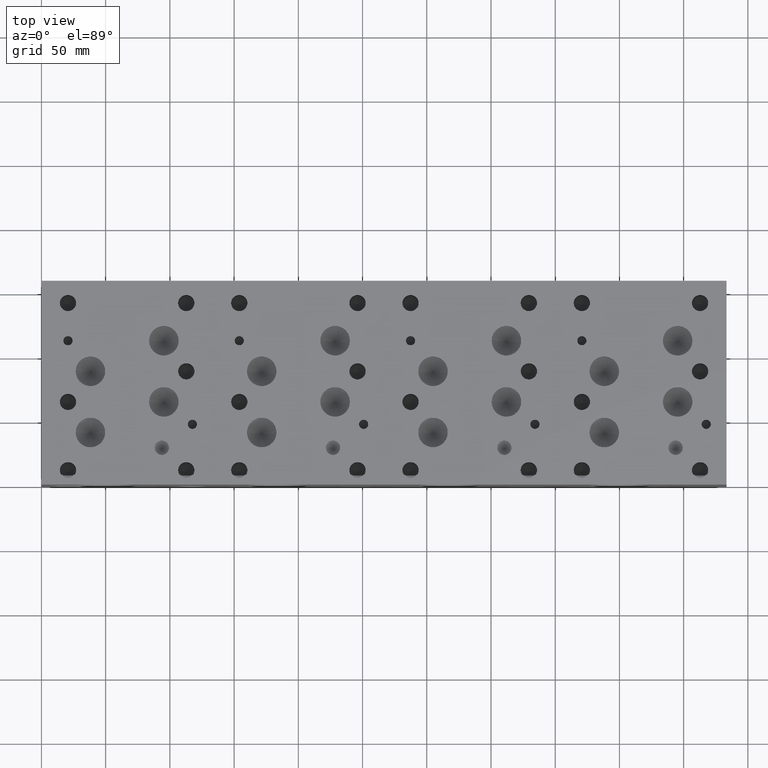
[diagram: clean part render]
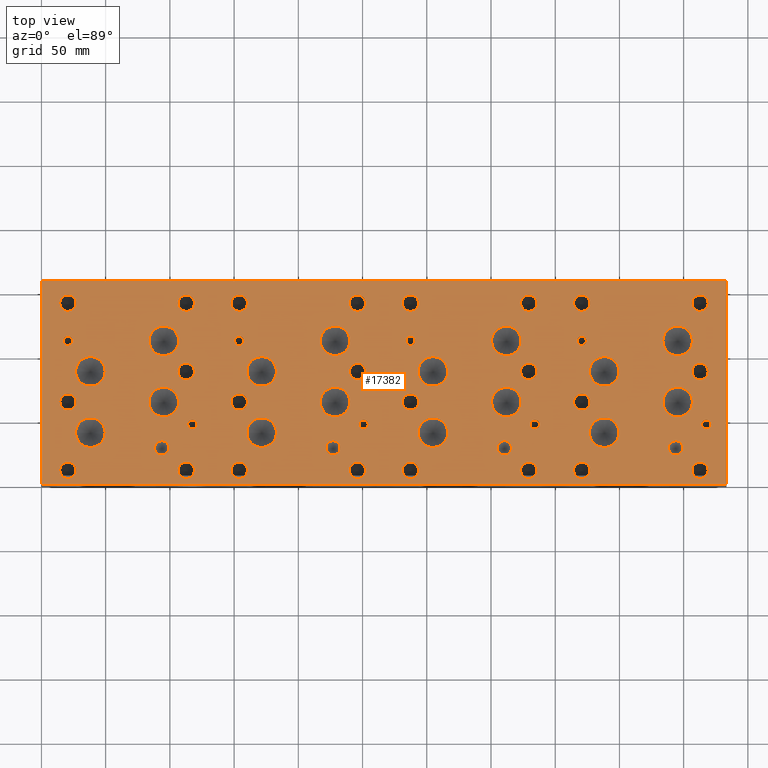
[diagram: same view with one face highlighted and labeled with its STEP entity id]
A machine part, top view. The second image highlights one B-rep face of the part: STEP entity #17382.
In plain terms, the highlighted planar face has unit normal (0, 0, 1).
Its self-contained STEP definition (entity closure, byte-faithful):
#541=CIRCLE('',#17849,5.5626);
#542=CIRCLE('',#17850,5.5626);
#545=CIRCLE('',#17855,5.5626);
#546=CIRCLE('',#17856,5.5626);
#549=CIRCLE('',#17861,5.5626);
#550=CIRCLE('',#17862,5.5626);
#810=CIRCLE('',#18307,5.55625);
#811=CIRCLE('',#18308,5.55625);
#814=CIRCLE('',#18313,11.50874);
#815=CIRCLE('',#18314,11.50874);
#818=CIRCLE('',#18319,11.5062);
#819=CIRCLE('',#18320,11.5062);
#822=CIRCLE('',#18325,11.5062);
#823=CIRCLE('',#18326,11.5062);
#826=CIRCLE('',#18331,11.5062);
#827=CIRCLE('',#18332,11.5062);
#830=CIRCLE('',#18337,11.5062);
#831=CIRCLE('',#18338,11.5062);
#834=CIRCLE('',#18343,11.5062);
#835=CIRCLE('',#18344,11.5062);
#838=CIRCLE('',#18349,11.5062);
#839=CIRCLE('',#18350,11.5062);
#842=CIRCLE('',#18355,11.5062);
#843=CIRCLE('',#18356,11.5062);
#846=CIRCLE('',#18361,11.5062);
#847=CIRCLE('',#18362,11.5062);
#850=CIRCLE('',#18367,11.5062);
#851=CIRCLE('',#18368,11.5062);
#854=CIRCLE('',#18373,11.5062);
#855=CIRCLE('',#18374,11.5062);
#858=CIRCLE('',#18379,11.5062);
#859=CIRCLE('',#18380,11.5062);
#862=CIRCLE('',#18385,11.5062);
#863=CIRCLE('',#18386,11.5062);
#866=CIRCLE('',#18391,11.5062);
#867=CIRCLE('',#18392,11.5062);
#870=CIRCLE('',#18397,11.5062);
#871=CIRCLE('',#18398,11.5062);
#874=CIRCLE('',#18403,11.5062);
#875=CIRCLE('',#18404,11.5062);
#878=CIRCLE('',#18409,3.5687);
#879=CIRCLE('',#18410,3.5687);
#882=CIRCLE('',#18415,3.5687);
#883=CIRCLE('',#18416,3.5687);
#886=CIRCLE('',#18421,3.5687);
#887=CIRCLE('',#18422,3.5687);
#890=CIRCLE('',#18427,3.5687);
#891=CIRCLE('',#18428,3.5687);
#894=CIRCLE('',#18433,3.5687);
#895=CIRCLE('',#18434,3.5687);
#898=CIRCLE('',#18439,3.5687);
#899=CIRCLE('',#18440,3.5687);
#902=CIRCLE('',#18445,3.5687);
#903=CIRCLE('',#18446,3.5687);
#906=CIRCLE('',#18451,3.5687);
#907=CIRCLE('',#18452,3.5687);
#913=CIRCLE('',#18461,6.35);
#914=CIRCLE('',#18462,6.35);
#920=CIRCLE('',#18472,6.35);
#921=CIRCLE('',#18473,6.35);
#927=CIRCLE('',#18483,6.35);
#928=CIRCLE('',#18484,6.35);
#934=CIRCLE('',#18494,6.35);
#935=CIRCLE('',#18495,6.35);
#941=CIRCLE('',#18505,6.35);
#942=CIRCLE('',#18506,6.35);
#948=CIRCLE('',#18516,6.35);
#949=CIRCLE('',#18517,6.35);
#955=CIRCLE('',#18527,6.35);
#956=CIRCLE('',#18528,6.35);
#962=CIRCLE('',#18538,6.35);
#963=CIRCLE('',#18539,6.35);
#969=CIRCLE('',#18549,6.35);
#970=CIRCLE('',#18550,6.35);
#976=CIRCLE('',#18560,6.35);
#977=CIRCLE('',#18561,6.35);
#983=CIRCLE('',#18571,6.35);
#984=CIRCLE('',#18572,6.35);
#990=CIRCLE('',#18582,6.35);
#991=CIRCLE('',#18583,6.35);
#997=CIRCLE('',#18593,6.35);
#998=CIRCLE('',#18594,6.35);
#1004=CIRCLE('',#18604,6.35);
#1005=CIRCLE('',#18605,6.35);
#1011=CIRCLE('',#18615,6.35);
#1012=CIRCLE('',#18616,6.35);
#1018=CIRCLE('',#18626,6.35);
#1019=CIRCLE('',#18627,6.35);
#1025=CIRCLE('',#18637,6.35);
#1026=CIRCLE('',#18638,6.35);
#1032=CIRCLE('',#18648,6.35);
#1033=CIRCLE('',#18649,6.35);
#1039=CIRCLE('',#18659,6.35);
#1040=CIRCLE('',#18660,6.35);
#1046=CIRCLE('',#18670,6.35);
#1047=CIRCLE('',#18671,6.35);
#1053=CIRCLE('',#18681,6.35);
#1054=CIRCLE('',#18682,6.35);
#1060=CIRCLE('',#18692,6.35);
#1061=CIRCLE('',#18693,6.35);
#1067=CIRCLE('',#18703,6.35);
#1068=CIRCLE('',#18704,6.35);
#1074=CIRCLE('',#18714,6.35);
#1075=CIRCLE('',#18715,6.35);
#1572=FACE_BOUND('',#3589,.T.);
#1573=FACE_BOUND('',#3590,.T.);
#1574=FACE_BOUND('',#3591,.T.);
#1575=FACE_BOUND('',#3592,.T.);
#1576=FACE_BOUND('',#3593,.T.);
#1577=FACE_BOUND('',#3594,.T.);
#1578=FACE_BOUND('',#3595,.T.);
#1579=FACE_BOUND('',#3596,.T.);
#1580=FACE_BOUND('',#3597,.T.);
#1581=FACE_BOUND('',#3598,.T.);
#1582=FACE_BOUND('',#3599,.T.);
#1583=FACE_BOUND('',#3600,.T.);
#1584=FACE_BOUND('',#3601,.T.);
#1585=FACE_BOUND('',#3602,.T.);
#1586=FACE_BOUND('',#3603,.T.);
#1587=FACE_BOUND('',#3604,.T.);
#1588=FACE_BOUND('',#3605,.T.);
#1589=FACE_BOUND('',#3606,.T.);
#1590=FACE_BOUND('',#3607,.T.);
#1591=FACE_BOUND('',#3608,.T.);
#1592=FACE_BOUND('',#3609,.T.);
#1593=FACE_BOUND('',#3610,.T.);
#1594=FACE_BOUND('',#3611,.T.);
#1595=FACE_BOUND('',#3612,.T.);
#1596=FACE_BOUND('',#3613,.T.);
#1597=FACE_BOUND('',#3614,.T.);
#1598=FACE_BOUND('',#3615,.T.);
#1599=FACE_BOUND('',#3616,.T.);
#1600=FACE_BOUND('',#3617,.T.);
#1601=FACE_BOUND('',#3618,.T.);
#1602=FACE_BOUND('',#3619,.T.);
#1603=FACE_BOUND('',#3620,.T.);
#1604=FACE_BOUND('',#3621,.T.);
#1605=FACE_BOUND('',#3622,.T.);
#1606=FACE_BOUND('',#3623,.T.);
#1607=FACE_BOUND('',#3624,.T.);
#1608=FACE_BOUND('',#3625,.T.);
#1609=FACE_BOUND('',#3626,.T.);
#1610=FACE_BOUND('',#3627,.T.);
#1611=FACE_BOUND('',#3628,.T.);
#1612=FACE_BOUND('',#3629,.T.);
#1613=FACE_BOUND('',#3630,.T.);
#1614=FACE_BOUND('',#3631,.T.);
#1615=FACE_BOUND('',#3632,.T.);
#1616=FACE_BOUND('',#3633,.T.);
#1617=FACE_BOUND('',#3634,.T.);
#1618=FACE_BOUND('',#3635,.T.);
#1619=FACE_BOUND('',#3636,.T.);
#1620=FACE_BOUND('',#3637,.T.);
#1621=FACE_BOUND('',#3638,.T.);
#1622=FACE_BOUND('',#3639,.T.);
#1623=FACE_BOUND('',#3640,.T.);
#2539=FACE_OUTER_BOUND('',#3588,.T.);
#3588=EDGE_LOOP('',(#15369,#15370,#15371,#15372));
#3589=EDGE_LOOP('',(#15373,#15374));
#3590=EDGE_LOOP('',(#15375,#15376));
#3591=EDGE_LOOP('',(#15377,#15378));
#3592=EDGE_LOOP('',(#15379,#15380));
#3593=EDGE_LOOP('',(#15381,#15382));
#3594=EDGE_LOOP('',(#15383,#15384));
#3595=EDGE_LOOP('',(#15385,#15386));
#3596=EDGE_LOOP('',(#15387,#15388));
#3597=EDGE_LOOP('',(#15389,#15390));
#3598=EDGE_LOOP('',(#15391,#15392));
#3599=EDGE_LOOP('',(#15393,#15394));
#3600=EDGE_LOOP('',(#15395,#15396));
#3601=EDGE_LOOP('',(#15397,#15398));
#3602=EDGE_LOOP('',(#15399,#15400));
#3603=EDGE_LOOP('',(#15401,#15402));
#3604=EDGE_LOOP('',(#15403,#15404));
#3605=EDGE_LOOP('',(#15405,#15406));
#3606=EDGE_LOOP('',(#15407,#15408));
#3607=EDGE_LOOP('',(#15409,#15410));
#3608=EDGE_LOOP('',(#15411,#15412));
#3609=EDGE_LOOP('',(#15413,#15414));
#3610=EDGE_LOOP('',(#15415,#15416));
#3611=EDGE_LOOP('',(#15417,#15418));
#3612=EDGE_LOOP('',(#15419,#15420));
#3613=EDGE_LOOP('',(#15421,#15422));
#3614=EDGE_LOOP('',(#15423,#15424));
#3615=EDGE_LOOP('',(#15425,#15426));
#3616=EDGE_LOOP('',(#15427,#15428));
#3617=EDGE_LOOP('',(#15429,#15430));
#3618=EDGE_LOOP('',(#15431,#15432));
#3619=EDGE_LOOP('',(#15433,#15434));
#3620=EDGE_LOOP('',(#15435,#15436));
#3621=EDGE_LOOP('',(#15437,#15438));
#3622=EDGE_LOOP('',(#15439,#15440));
#3623=EDGE_LOOP('',(#15441,#15442));
#3624=EDGE_LOOP('',(#15443,#15444));
#3625=EDGE_LOOP('',(#15445,#15446));
#3626=EDGE_LOOP('',(#15447,#15448));
#3627=EDGE_LOOP('',(#15449,#15450));
#3628=EDGE_LOOP('',(#15451,#15452));
#3629=EDGE_LOOP('',(#15453,#15454));
#3630=EDGE_LOOP('',(#15455,#15456));
#3631=EDGE_LOOP('',(#15457,#15458));
#3632=EDGE_LOOP('',(#15459,#15460));
#3633=EDGE_LOOP('',(#15461,#15462));
#3634=EDGE_LOOP('',(#15463,#15464));
#3635=EDGE_LOOP('',(#15465,#15466));
#3636=EDGE_LOOP('',(#15467,#15468));
#3637=EDGE_LOOP('',(#15469,#15470));
#3638=EDGE_LOOP('',(#15471,#15472));
#3639=EDGE_LOOP('',(#15473,#15474));
#3640=EDGE_LOOP('',(#15475,#15476));
#3677=LINE('',#22909,#5136);
#4725=LINE('',#28053,#6184);
#4783=LINE('',#28324,#6242);
#5100=LINE('',#30208,#6559);
#5136=VECTOR('',#18786,10.);
#6184=VECTOR('',#20558,10.);
#6242=VECTOR('',#20670,10.);
#6559=VECTOR('',#22825,10.);
#6584=VERTEX_POINT('',#22906);
#6585=VERTEX_POINT('',#22908);
#7535=VERTEX_POINT('',#28051);
#7593=VERTEX_POINT('',#28323);
#7639=VERTEX_POINT('',#28454);
#7640=VERTEX_POINT('',#28455);
#7644=VERTEX_POINT('',#28467);
#7645=VERTEX_POINT('',#28468);
#7649=VERTEX_POINT('',#28480);
#7650=VERTEX_POINT('',#28481);
#7928=VERTEX_POINT('',#29360);
#7929=VERTEX_POINT('',#29361);
#7933=VERTEX_POINT('',#29373);
#7934=VERTEX_POINT('',#29374);
#7938=VERTEX_POINT('',#29386);
#7939=VERTEX_POINT('',#29387);
#7943=VERTEX_POINT('',#29399);
#7944=VERTEX_POINT('',#29400);
#7948=VERTEX_POINT('',#29412);
#7949=VERTEX_POINT('',#29413);
#7953=VERTEX_POINT('',#29425);
#7954=VERTEX_POINT('',#29426);
#7958=VERTEX_POINT('',#29438);
#7959=VERTEX_POINT('',#29439);
#7963=VERTEX_POINT('',#29451);
#7964=VERTEX_POINT('',#29452);
#7968=VERTEX_POINT('',#29464);
#7969=VERTEX_POINT('',#29465);
#7973=VERTEX_POINT('',#29477);
#7974=VERTEX_POINT('',#29478);
#7978=VERTEX_POINT('',#29490);
#7979=VERTEX_POINT('',#29491);
#7983=VERTEX_POINT('',#29503);
#7984=VERTEX_POINT('',#29504);
#7988=VERTEX_POINT('',#29516);
#7989=VERTEX_POINT('',#29517);
#7993=VERTEX_POINT('',#29529);
#7994=VERTEX_POINT('',#29530);
#7998=VERTEX_POINT('',#29542);
#7999=VERTEX_POINT('',#29543);
#8003=VERTEX_POINT('',#29555);
#8004=VERTEX_POINT('',#29556);
#8008=VERTEX_POINT('',#29568);
#8009=VERTEX_POINT('',#29569);
#8013=VERTEX_POINT('',#29581);
#8014=VERTEX_POINT('',#29582);
#8018=VERTEX_POINT('',#29594);
#8019=VERTEX_POINT('',#29595);
#8023=VERTEX_POINT('',#29607);
#8024=VERTEX_POINT('',#29608);
#8028=VERTEX_POINT('',#29620);
#8029=VERTEX_POINT('',#29621);
#8033=VERTEX_POINT('',#29633);
#8034=VERTEX_POINT('',#29634);
#8038=VERTEX_POINT('',#29646);
#8039=VERTEX_POINT('',#29647);
#8043=VERTEX_POINT('',#29659);
#8044=VERTEX_POINT('',#29660);
#8048=VERTEX_POINT('',#29672);
#8049=VERTEX_POINT('',#29673);
#8056=VERTEX_POINT('',#29692);
#8057=VERTEX_POINT('',#29693);
#8064=VERTEX_POINT('',#29714);
#8065=VERTEX_POINT('',#29715);
#8072=VERTEX_POINT('',#29736);
#8073=VERTEX_POINT('',#29737);
#8080=VERTEX_POINT('',#29758);
#8081=VERTEX_POINT('',#29759);
#8088=VERTEX_POINT('',#29780);
#8089=VERTEX_POINT('',#29781);
#8096=VERTEX_POINT('',#29802);
#8097=VERTEX_POINT('',#29803);
#8104=VERTEX_POINT('',#29824);
#8105=VERTEX_POINT('',#29825);
#8112=VERTEX_POINT('',#29846);
#8113=VERTEX_POINT('',#29847);
#8120=VERTEX_POINT('',#29868);
#8121=VERTEX_POINT('',#29869);
#8128=VERTEX_POINT('',#29890);
#8129=VERTEX_POINT('',#29891);
#8136=VERTEX_POINT('',#29912);
#8137=VERTEX_POINT('',#29913);
#8144=VERTEX_POINT('',#29934);
#8145=VERTEX_POINT('',#29935);
#8152=VERTEX_POINT('',#29956);
#8153=VERTEX_POINT('',#29957);
#8160=VERTEX_POINT('',#29978);
#8161=VERTEX_POINT('',#29979);
#8168=VERTEX_POINT('',#30000);
#8169=VERTEX_POINT('',#30001);
#8176=VERTEX_POINT('',#30022);
#8177=VERTEX_POINT('',#30023);
#8184=VERTEX_POINT('',#30044);
#8185=VERTEX_POINT('',#30045);
#8192=VERTEX_POINT('',#30066);
#8193=VERTEX_POINT('',#30067);
#8200=VERTEX_POINT('',#30088);
#8201=VERTEX_POINT('',#30089);
#8208=VERTEX_POINT('',#30110);
#8209=VERTEX_POINT('',#30111);
#8216=VERTEX_POINT('',#30132);
#8217=VERTEX_POINT('',#30133);
#8224=VERTEX_POINT('',#30154);
#8225=VERTEX_POINT('',#30155);
#8232=VERTEX_POINT('',#30176);
#8233=VERTEX_POINT('',#30177);
#8240=VERTEX_POINT('',#30198);
#8241=VERTEX_POINT('',#30199);
#8277=EDGE_CURVE('',#6585,#6584,#3677,.T.);
#9693=EDGE_CURVE('',#6584,#7535,#4725,.T.);
#9775=EDGE_CURVE('',#7593,#6585,#4783,.T.);
#9838=EDGE_CURVE('',#7639,#7640,#541,.T.);
#9839=EDGE_CURVE('',#7640,#7639,#542,.T.);
#9844=EDGE_CURVE('',#7644,#7645,#545,.T.);
#9845=EDGE_CURVE('',#7645,#7644,#546,.T.);
#9850=EDGE_CURVE('',#7649,#7650,#549,.T.);
#9851=EDGE_CURVE('',#7650,#7649,#550,.T.);
#10266=EDGE_CURVE('',#7928,#7929,#810,.T.);
#10267=EDGE_CURVE('',#7929,#7928,#811,.T.);
#10272=EDGE_CURVE('',#7933,#7934,#814,.T.);
#10273=EDGE_CURVE('',#7934,#7933,#815,.T.);
#10278=EDGE_CURVE('',#7938,#7939,#818,.T.);
#10279=EDGE_CURVE('',#7939,#7938,#819,.T.);
#10284=EDGE_CURVE('',#7943,#7944,#822,.T.);
#10285=EDGE_CURVE('',#7944,#7943,#823,.T.);
#10290=EDGE_CURVE('',#7948,#7949,#826,.T.);
#10291=EDGE_CURVE('',#7949,#7948,#827,.T.);
#10296=EDGE_CURVE('',#7953,#7954,#830,.T.);
#10297=EDGE_CURVE('',#7954,#7953,#831,.T.);
#10302=EDGE_CURVE('',#7958,#7959,#834,.T.);
#10303=EDGE_CURVE('',#7959,#7958,#835,.T.);
#10308=EDGE_CURVE('',#7963,#7964,#838,.T.);
#10309=EDGE_CURVE('',#7964,#7963,#839,.T.);
#10314=EDGE_CURVE('',#7968,#7969,#842,.T.);
#10315=EDGE_CURVE('',#7969,#7968,#843,.T.);
#10320=EDGE_CURVE('',#7973,#7974,#846,.T.);
#10321=EDGE_CURVE('',#7974,#7973,#847,.T.);
#10326=EDGE_CURVE('',#7978,#7979,#850,.T.);
#10327=EDGE_CURVE('',#7979,#7978,#851,.T.);
#10332=EDGE_CURVE('',#7983,#7984,#854,.T.);
#10333=EDGE_CURVE('',#7984,#7983,#855,.T.);
#10338=EDGE_CURVE('',#7988,#7989,#858,.T.);
#10339=EDGE_CURVE('',#7989,#7988,#859,.T.);
#10344=EDGE_CURVE('',#7993,#7994,#862,.T.);
#10345=EDGE_CURVE('',#7994,#7993,#863,.T.);
#10350=EDGE_CURVE('',#7998,#7999,#866,.T.);
#10351=EDGE_CURVE('',#7999,#7998,#867,.T.);
#10356=EDGE_CURVE('',#8003,#8004,#870,.T.);
#10357=EDGE_CURVE('',#8004,#8003,#871,.T.);
#10362=EDGE_CURVE('',#8008,#8009,#874,.T.);
#10363=EDGE_CURVE('',#8009,#8008,#875,.T.);
#10368=EDGE_CURVE('',#8013,#8014,#878,.T.);
#10369=EDGE_CURVE('',#8014,#8013,#879,.T.);
#10374=EDGE_CURVE('',#8018,#8019,#882,.T.);
#10375=EDGE_CURVE('',#8019,#8018,#883,.T.);
#10380=EDGE_CURVE('',#8023,#8024,#886,.T.);
#10381=EDGE_CURVE('',#8024,#8023,#887,.T.);
#10386=EDGE_CURVE('',#8028,#8029,#890,.T.);
#10387=EDGE_CURVE('',#8029,#8028,#891,.T.);
#10392=EDGE_CURVE('',#8033,#8034,#894,.T.);
#10393=EDGE_CURVE('',#8034,#8033,#895,.T.);
#10398=EDGE_CURVE('',#8038,#8039,#898,.T.);
#10399=EDGE_CURVE('',#8039,#8038,#899,.T.);
#10404=EDGE_CURVE('',#8043,#8044,#902,.T.);
#10405=EDGE_CURVE('',#8044,#8043,#903,.T.);
#10410=EDGE_CURVE('',#8048,#8049,#906,.T.);
#10411=EDGE_CURVE('',#8049,#8048,#907,.T.);
#10419=EDGE_CURVE('',#8056,#8057,#913,.T.);
#10420=EDGE_CURVE('',#8057,#8056,#914,.T.);
#10429=EDGE_CURVE('',#8064,#8065,#920,.T.);
#10430=EDGE_CURVE('',#8065,#8064,#921,.T.);
#10439=EDGE_CURVE('',#8072,#8073,#927,.T.);
#10440=EDGE_CURVE('',#8073,#8072,#928,.T.);
#10449=EDGE_CURVE('',#8080,#8081,#934,.T.);
#10450=EDGE_CURVE('',#8081,#8080,#935,.T.);
#10459=EDGE_CURVE('',#8088,#8089,#941,.T.);
#10460=EDGE_CURVE('',#8089,#8088,#942,.T.);
#10469=EDGE_CURVE('',#8096,#8097,#948,.T.);
#10470=EDGE_CURVE('',#8097,#8096,#949,.T.);
#10479=EDGE_CURVE('',#8104,#8105,#955,.T.);
#10480=EDGE_CURVE('',#8105,#8104,#956,.T.);
#10489=EDGE_CURVE('',#8112,#8113,#962,.T.);
#10490=EDGE_CURVE('',#8113,#8112,#963,.T.);
#10499=EDGE_CURVE('',#8120,#8121,#969,.T.);
#10500=EDGE_CURVE('',#8121,#8120,#970,.T.);
#10509=EDGE_CURVE('',#8128,#8129,#976,.T.);
#10510=EDGE_CURVE('',#8129,#8128,#977,.T.);
#10519=EDGE_CURVE('',#8136,#8137,#983,.T.);
#10520=EDGE_CURVE('',#8137,#8136,#984,.T.);
#10529=EDGE_CURVE('',#8144,#8145,#990,.T.);
#10530=EDGE_CURVE('',#8145,#8144,#991,.T.);
#10539=EDGE_CURVE('',#8152,#8153,#997,.T.);
#10540=EDGE_CURVE('',#8153,#8152,#998,.T.);
#10549=EDGE_CURVE('',#8160,#8161,#1004,.T.);
#10550=EDGE_CURVE('',#8161,#8160,#1005,.T.);
#10559=EDGE_CURVE('',#8168,#8169,#1011,.T.);
#10560=EDGE_CURVE('',#8169,#8168,#1012,.T.);
#10569=EDGE_CURVE('',#8176,#8177,#1018,.T.);
#10570=EDGE_CURVE('',#8177,#8176,#1019,.T.);
#10579=EDGE_CURVE('',#8184,#8185,#1025,.T.);
#10580=EDGE_CURVE('',#8185,#8184,#1026,.T.);
#10589=EDGE_CURVE('',#8192,#8193,#1032,.T.);
#10590=EDGE_CURVE('',#8193,#8192,#1033,.T.);
#10599=EDGE_CURVE('',#8200,#8201,#1039,.T.);
#10600=EDGE_CURVE('',#8201,#8200,#1040,.T.);
#10609=EDGE_CURVE('',#8208,#8209,#1046,.T.);
#10610=EDGE_CURVE('',#8209,#8208,#1047,.T.);
#10619=EDGE_CURVE('',#8216,#8217,#1053,.T.);
#10620=EDGE_CURVE('',#8217,#8216,#1054,.T.);
#10629=EDGE_CURVE('',#8224,#8225,#1060,.T.);
#10630=EDGE_CURVE('',#8225,#8224,#1061,.T.);
#10639=EDGE_CURVE('',#8232,#8233,#1067,.T.);
#10640=EDGE_CURVE('',#8233,#8232,#1068,.T.);
#10649=EDGE_CURVE('',#8240,#8241,#1074,.T.);
#10650=EDGE_CURVE('',#8241,#8240,#1075,.T.);
#10654=EDGE_CURVE('',#7535,#7593,#5100,.T.);
#15369=ORIENTED_EDGE('',*,*,#8277,.T.);
#15370=ORIENTED_EDGE('',*,*,#9693,.T.);
#15371=ORIENTED_EDGE('',*,*,#10654,.T.);
#15372=ORIENTED_EDGE('',*,*,#9775,.T.);
#15373=ORIENTED_EDGE('',*,*,#9838,.T.);
#15374=ORIENTED_EDGE('',*,*,#9839,.T.);
#15375=ORIENTED_EDGE('',*,*,#9844,.T.);
#15376=ORIENTED_EDGE('',*,*,#9845,.T.);
#15377=ORIENTED_EDGE('',*,*,#9850,.T.);
#15378=ORIENTED_EDGE('',*,*,#9851,.T.);
#15379=ORIENTED_EDGE('',*,*,#10266,.T.);
#15380=ORIENTED_EDGE('',*,*,#10267,.T.);
#15381=ORIENTED_EDGE('',*,*,#10272,.T.);
#15382=ORIENTED_EDGE('',*,*,#10273,.T.);
#15383=ORIENTED_EDGE('',*,*,#10278,.T.);
#15384=ORIENTED_EDGE('',*,*,#10279,.T.);
#15385=ORIENTED_EDGE('',*,*,#10284,.T.);
#15386=ORIENTED_EDGE('',*,*,#10285,.T.);
#15387=ORIENTED_EDGE('',*,*,#10290,.T.);
#15388=ORIENTED_EDGE('',*,*,#10291,.T.);
#15389=ORIENTED_EDGE('',*,*,#10296,.T.);
#15390=ORIENTED_EDGE('',*,*,#10297,.T.);
#15391=ORIENTED_EDGE('',*,*,#10302,.T.);
#15392=ORIENTED_EDGE('',*,*,#10303,.T.);
#15393=ORIENTED_EDGE('',*,*,#10308,.T.);
#15394=ORIENTED_EDGE('',*,*,#10309,.T.);
#15395=ORIENTED_EDGE('',*,*,#10314,.T.);
#15396=ORIENTED_EDGE('',*,*,#10315,.T.);
#15397=ORIENTED_EDGE('',*,*,#10320,.T.);
#15398=ORIENTED_EDGE('',*,*,#10321,.T.);
#15399=ORIENTED_EDGE('',*,*,#10326,.T.);
#15400=ORIENTED_EDGE('',*,*,#10327,.T.);
#15401=ORIENTED_EDGE('',*,*,#10332,.T.);
#15402=ORIENTED_EDGE('',*,*,#10333,.T.);
#15403=ORIENTED_EDGE('',*,*,#10338,.T.);
#15404=ORIENTED_EDGE('',*,*,#10339,.T.);
#15405=ORIENTED_EDGE('',*,*,#10344,.T.);
#15406=ORIENTED_EDGE('',*,*,#10345,.T.);
#15407=ORIENTED_EDGE('',*,*,#10350,.T.);
#15408=ORIENTED_EDGE('',*,*,#10351,.T.);
#15409=ORIENTED_EDGE('',*,*,#10356,.T.);
#15410=ORIENTED_EDGE('',*,*,#10357,.T.);
#15411=ORIENTED_EDGE('',*,*,#10362,.T.);
#15412=ORIENTED_EDGE('',*,*,#10363,.T.);
#15413=ORIENTED_EDGE('',*,*,#10368,.T.);
#15414=ORIENTED_EDGE('',*,*,#10369,.T.);
#15415=ORIENTED_EDGE('',*,*,#10374,.T.);
#15416=ORIENTED_EDGE('',*,*,#10375,.T.);
#15417=ORIENTED_EDGE('',*,*,#10380,.T.);
#15418=ORIENTED_EDGE('',*,*,#10381,.T.);
#15419=ORIENTED_EDGE('',*,*,#10386,.T.);
#15420=ORIENTED_EDGE('',*,*,#10387,.T.);
#15421=ORIENTED_EDGE('',*,*,#10392,.T.);
#15422=ORIENTED_EDGE('',*,*,#10393,.T.);
#15423=ORIENTED_EDGE('',*,*,#10398,.T.);
#15424=ORIENTED_EDGE('',*,*,#10399,.T.);
#15425=ORIENTED_EDGE('',*,*,#10404,.T.);
#15426=ORIENTED_EDGE('',*,*,#10405,.T.);
#15427=ORIENTED_EDGE('',*,*,#10410,.T.);
#15428=ORIENTED_EDGE('',*,*,#10411,.T.);
#15429=ORIENTED_EDGE('',*,*,#10419,.T.);
#15430=ORIENTED_EDGE('',*,*,#10420,.T.);
#15431=ORIENTED_EDGE('',*,*,#10429,.T.);
#15432=ORIENTED_EDGE('',*,*,#10430,.T.);
#15433=ORIENTED_EDGE('',*,*,#10439,.T.);
#15434=ORIENTED_EDGE('',*,*,#10440,.T.);
#15435=ORIENTED_EDGE('',*,*,#10449,.T.);
#15436=ORIENTED_EDGE('',*,*,#10450,.T.);
#15437=ORIENTED_EDGE('',*,*,#10459,.T.);
#15438=ORIENTED_EDGE('',*,*,#10460,.T.);
#15439=ORIENTED_EDGE('',*,*,#10469,.T.);
#15440=ORIENTED_EDGE('',*,*,#10470,.T.);
#15441=ORIENTED_EDGE('',*,*,#10479,.T.);
#15442=ORIENTED_EDGE('',*,*,#10480,.T.);
#15443=ORIENTED_EDGE('',*,*,#10489,.T.);
#15444=ORIENTED_EDGE('',*,*,#10490,.T.);
#15445=ORIENTED_EDGE('',*,*,#10499,.T.);
#15446=ORIENTED_EDGE('',*,*,#10500,.T.);
#15447=ORIENTED_EDGE('',*,*,#10509,.T.);
#15448=ORIENTED_EDGE('',*,*,#10510,.T.);
#15449=ORIENTED_EDGE('',*,*,#10519,.T.);
#15450=ORIENTED_EDGE('',*,*,#10520,.T.);
#15451=ORIENTED_EDGE('',*,*,#10529,.T.);
#15452=ORIENTED_EDGE('',*,*,#10530,.T.);
#15453=ORIENTED_EDGE('',*,*,#10539,.T.);
#15454=ORIENTED_EDGE('',*,*,#10540,.T.);
#15455=ORIENTED_EDGE('',*,*,#10549,.T.);
#15456=ORIENTED_EDGE('',*,*,#10550,.T.);
#15457=ORIENTED_EDGE('',*,*,#10559,.T.);
#15458=ORIENTED_EDGE('',*,*,#10560,.T.);
#15459=ORIENTED_EDGE('',*,*,#10569,.T.);
#15460=ORIENTED_EDGE('',*,*,#10570,.T.);
#15461=ORIENTED_EDGE('',*,*,#10579,.T.);
#15462=ORIENTED_EDGE('',*,*,#10580,.T.);
#15463=ORIENTED_EDGE('',*,*,#10589,.T.);
#15464=ORIENTED_EDGE('',*,*,#10590,.T.);
#15465=ORIENTED_EDGE('',*,*,#10599,.T.);
#15466=ORIENTED_EDGE('',*,*,#10600,.T.);
#15467=ORIENTED_EDGE('',*,*,#10609,.T.);
#15468=ORIENTED_EDGE('',*,*,#10610,.T.);
#15469=ORIENTED_EDGE('',*,*,#10619,.T.);
#15470=ORIENTED_EDGE('',*,*,#10620,.T.);
#15471=ORIENTED_EDGE('',*,*,#10629,.T.);
#15472=ORIENTED_EDGE('',*,*,#10630,.T.);
#15473=ORIENTED_EDGE('',*,*,#10639,.T.);
#15474=ORIENTED_EDGE('',*,*,#10640,.T.);
#15475=ORIENTED_EDGE('',*,*,#10649,.T.);
#15476=ORIENTED_EDGE('',*,*,#10650,.T.);
#15924=PLANE('',#18721);
#17382=ADVANCED_FACE('',(#2539,#1572,#1573,#1574,#1575,#1576,#1577,#1578,
#1579,#1580,#1581,#1582,#1583,#1584,#1585,#1586,#1587,#1588,#1589,#1590,
#1591,#1592,#1593,#1594,#1595,#1596,#1597,#1598,#1599,#1600,#1601,#1602,
#1603,#1604,#1605,#1606,#1607,#1608,#1609,#1610,#1611,#1612,#1613,#1614,
#1615,#1616,#1617,#1618,#1619,#1620,#1621,#1622,#1623),#15924,.T.);
#17849=AXIS2_PLACEMENT_3D('',#28456,#20804,#20805);
#17850=AXIS2_PLACEMENT_3D('',#28457,#20806,#20807);
#17855=AXIS2_PLACEMENT_3D('',#28469,#20818,#20819);
#17856=AXIS2_PLACEMENT_3D('',#28470,#20820,#20821);
#17861=AXIS2_PLACEMENT_3D('',#28482,#20832,#20833);
#17862=AXIS2_PLACEMENT_3D('',#28483,#20834,#20835);
#18307=AXIS2_PLACEMENT_3D('',#29362,#21879,#21880);
#18308=AXIS2_PLACEMENT_3D('',#29363,#21881,#21882);
#18313=AXIS2_PLACEMENT_3D('',#29375,#21893,#21894);
#18314=AXIS2_PLACEMENT_3D('',#29376,#21895,#21896);
#18319=AXIS2_PLACEMENT_3D('',#29388,#21907,#21908);
#18320=AXIS2_PLACEMENT_3D('',#29389,#21909,#21910);
#18325=AXIS2_PLACEMENT_3D('',#29401,#21921,#21922);
#18326=AXIS2_PLACEMENT_3D('',#29402,#21923,#21924);
#18331=AXIS2_PLACEMENT_3D('',#29414,#21935,#21936);
#18332=AXIS2_PLACEMENT_3D('',#29415,#21937,#21938);
#18337=AXIS2_PLACEMENT_3D('',#29427,#21949,#21950);
#18338=AXIS2_PLACEMENT_3D('',#29428,#21951,#21952);
#18343=AXIS2_PLACEMENT_3D('',#29440,#21963,#21964);
#18344=AXIS2_PLACEMENT_3D('',#29441,#21965,#21966);
#18349=AXIS2_PLACEMENT_3D('',#29453,#21977,#21978);
#18350=AXIS2_PLACEMENT_3D('',#29454,#21979,#21980);
#18355=AXIS2_PLACEMENT_3D('',#29466,#21991,#21992);
#18356=AXIS2_PLACEMENT_3D('',#29467,#21993,#21994);
#18361=AXIS2_PLACEMENT_3D('',#29479,#22005,#22006);
#18362=AXIS2_PLACEMENT_3D('',#29480,#22007,#22008);
#18367=AXIS2_PLACEMENT_3D('',#29492,#22019,#22020);
#18368=AXIS2_PLACEMENT_3D('',#29493,#22021,#22022);
#18373=AXIS2_PLACEMENT_3D('',#29505,#22033,#22034);
#18374=AXIS2_PLACEMENT_3D('',#29506,#22035,#22036);
#18379=AXIS2_PLACEMENT_3D('',#29518,#22047,#22048);
#18380=AXIS2_PLACEMENT_3D('',#29519,#22049,#22050);
#18385=AXIS2_PLACEMENT_3D('',#29531,#22061,#22062);
#18386=AXIS2_PLACEMENT_3D('',#29532,#22063,#22064);
#18391=AXIS2_PLACEMENT_3D('',#29544,#22075,#22076);
#18392=AXIS2_PLACEMENT_3D('',#29545,#22077,#22078);
#18397=AXIS2_PLACEMENT_3D('',#29557,#22089,#22090);
#18398=AXIS2_PLACEMENT_3D('',#29558,#22091,#22092);
#18403=AXIS2_PLACEMENT_3D('',#29570,#22103,#22104);
#18404=AXIS2_PLACEMENT_3D('',#29571,#22105,#22106);
#18409=AXIS2_PLACEMENT_3D('',#29583,#22117,#22118);
#18410=AXIS2_PLACEMENT_3D('',#29584,#22119,#22120);
#18415=AXIS2_PLACEMENT_3D('',#29596,#22131,#22132);
#18416=AXIS2_PLACEMENT_3D('',#29597,#22133,#22134);
#18421=AXIS2_PLACEMENT_3D('',#29609,#22145,#22146);
#18422=AXIS2_PLACEMENT_3D('',#29610,#22147,#22148);
#18427=AXIS2_PLACEMENT_3D('',#29622,#22159,#22160);
#18428=AXIS2_PLACEMENT_3D('',#29623,#22161,#22162);
#18433=AXIS2_PLACEMENT_3D('',#29635,#22173,#22174);
#18434=AXIS2_PLACEMENT_3D('',#29636,#22175,#22176);
#18439=AXIS2_PLACEMENT_3D('',#29648,#22187,#22188);
#18440=AXIS2_PLACEMENT_3D('',#29649,#22189,#22190);
#18445=AXIS2_PLACEMENT_3D('',#29661,#22201,#22202);
#18446=AXIS2_PLACEMENT_3D('',#29662,#22203,#22204);
#18451=AXIS2_PLACEMENT_3D('',#29674,#22215,#22216);
#18452=AXIS2_PLACEMENT_3D('',#29675,#22217,#22218);
#18461=AXIS2_PLACEMENT_3D('',#29694,#22237,#22238);
#18462=AXIS2_PLACEMENT_3D('',#29695,#22239,#22240);
#18472=AXIS2_PLACEMENT_3D('',#29716,#22262,#22263);
#18473=AXIS2_PLACEMENT_3D('',#29717,#22264,#22265);
#18483=AXIS2_PLACEMENT_3D('',#29738,#22287,#22288);
#18484=AXIS2_PLACEMENT_3D('',#29739,#22289,#22290);
#18494=AXIS2_PLACEMENT_3D('',#29760,#22312,#22313);
#18495=AXIS2_PLACEMENT_3D('',#29761,#22314,#22315);
#18505=AXIS2_PLACEMENT_3D('',#29782,#22337,#22338);
#18506=AXIS2_PLACEMENT_3D('',#29783,#22339,#22340);
#18516=AXIS2_PLACEMENT_3D('',#29804,#22362,#22363);
#18517=AXIS2_PLACEMENT_3D('',#29805,#22364,#22365);
#18527=AXIS2_PLACEMENT_3D('',#29826,#22387,#22388);
#18528=AXIS2_PLACEMENT_3D('',#29827,#22389,#22390);
#18538=AXIS2_PLACEMENT_3D('',#29848,#22412,#22413);
#18539=AXIS2_PLACEMENT_3D('',#29849,#22414,#22415);
#18549=AXIS2_PLACEMENT_3D('',#29870,#22437,#22438);
#18550=AXIS2_PLACEMENT_3D('',#29871,#22439,#22440);
#18560=AXIS2_PLACEMENT_3D('',#29892,#22462,#22463);
#18561=AXIS2_PLACEMENT_3D('',#29893,#22464,#22465);
#18571=AXIS2_PLACEMENT_3D('',#29914,#22487,#22488);
#18572=AXIS2_PLACEMENT_3D('',#29915,#22489,#22490);
#18582=AXIS2_PLACEMENT_3D('',#29936,#22512,#22513);
#18583=AXIS2_PLACEMENT_3D('',#29937,#22514,#22515);
#18593=AXIS2_PLACEMENT_3D('',#29958,#22537,#22538);
#18594=AXIS2_PLACEMENT_3D('',#29959,#22539,#22540);
#18604=AXIS2_PLACEMENT_3D('',#29980,#22562,#22563);
#18605=AXIS2_PLACEMENT_3D('',#29981,#22564,#22565);
#18615=AXIS2_PLACEMENT_3D('',#30002,#22587,#22588);
#18616=AXIS2_PLACEMENT_3D('',#30003,#22589,#22590);
#18626=AXIS2_PLACEMENT_3D('',#30024,#22612,#22613);
#18627=AXIS2_PLACEMENT_3D('',#30025,#22614,#22615);
#18637=AXIS2_PLACEMENT_3D('',#30046,#22637,#22638);
#18638=AXIS2_PLACEMENT_3D('',#30047,#22639,#22640);
#18648=AXIS2_PLACEMENT_3D('',#30068,#22662,#22663);
#18649=AXIS2_PLACEMENT_3D('',#30069,#22664,#22665);
#18659=AXIS2_PLACEMENT_3D('',#30090,#22687,#22688);
#18660=AXIS2_PLACEMENT_3D('',#30091,#22689,#22690);
#18670=AXIS2_PLACEMENT_3D('',#30112,#22712,#22713);
#18671=AXIS2_PLACEMENT_3D('',#30113,#22714,#22715);
#18681=AXIS2_PLACEMENT_3D('',#30134,#22737,#22738);
#18682=AXIS2_PLACEMENT_3D('',#30135,#22739,#22740);
#18692=AXIS2_PLACEMENT_3D('',#30156,#22762,#22763);
#18693=AXIS2_PLACEMENT_3D('',#30157,#22764,#22765);
#18703=AXIS2_PLACEMENT_3D('',#30178,#22787,#22788);
#18704=AXIS2_PLACEMENT_3D('',#30179,#22789,#22790);
#18714=AXIS2_PLACEMENT_3D('',#30200,#22812,#22813);
#18715=AXIS2_PLACEMENT_3D('',#30201,#22814,#22815);
#18721=AXIS2_PLACEMENT_3D('',#30211,#22830,#22831);
#18786=DIRECTION('',(1.,0.,0.));
#20558=DIRECTION('',(0.,1.,0.));
#20670=DIRECTION('',(0.,-1.,0.));
#20804=DIRECTION('center_axis',(0.,0.,-1.));
#20805=DIRECTION('ref_axis',(1.,0.,0.));
#20806=DIRECTION('center_axis',(0.,0.,-1.));
#20807=DIRECTION('ref_axis',(1.,0.,0.));
#20818=DIRECTION('center_axis',(0.,0.,-1.));
#20819=DIRECTION('ref_axis',(1.,0.,0.));
#20820=DIRECTION('center_axis',(0.,0.,-1.));
#20821=DIRECTION('ref_axis',(1.,0.,0.));
#20832=DIRECTION('center_axis',(0.,0.,-1.));
#20833=DIRECTION('ref_axis',(1.,0.,0.));
#20834=DIRECTION('center_axis',(0.,0.,-1.));
#20835=DIRECTION('ref_axis',(1.,0.,0.));
#21879=DIRECTION('center_axis',(0.,0.,-1.));
#21880=DIRECTION('ref_axis',(1.,0.,0.));
#21881=DIRECTION('center_axis',(0.,0.,-1.));
#21882=DIRECTION('ref_axis',(1.,0.,0.));
#21893=DIRECTION('center_axis',(0.,0.,-1.));
#21894=DIRECTION('ref_axis',(1.,0.,0.));
#21895=DIRECTION('center_axis',(0.,0.,-1.));
#21896=DIRECTION('ref_axis',(1.,0.,0.));
#21907=DIRECTION('center_axis',(0.,0.,-1.));
#21908=DIRECTION('ref_axis',(1.,0.,0.));
#21909=DIRECTION('center_axis',(0.,0.,-1.));
#21910=DIRECTION('ref_axis',(1.,0.,0.));
#21921=DIRECTION('center_axis',(0.,0.,-1.));
#21922=DIRECTION('ref_axis',(1.,0.,0.));
#21923=DIRECTION('center_axis',(0.,0.,-1.));
#21924=DIRECTION('ref_axis',(1.,0.,0.));
#21935=DIRECTION('center_axis',(0.,0.,-1.));
#21936=DIRECTION('ref_axis',(1.,0.,0.));
#21937=DIRECTION('center_axis',(0.,0.,-1.));
#21938=DIRECTION('ref_axis',(1.,0.,0.));
#21949=DIRECTION('center_axis',(0.,0.,-1.));
#21950=DIRECTION('ref_axis',(1.,0.,0.));
#21951=DIRECTION('center_axis',(0.,0.,-1.));
#21952=DIRECTION('ref_axis',(1.,0.,0.));
#21963=DIRECTION('center_axis',(0.,0.,-1.));
#21964=DIRECTION('ref_axis',(1.,0.,0.));
#21965=DIRECTION('center_axis',(0.,0.,-1.));
#21966=DIRECTION('ref_axis',(1.,0.,0.));
#21977=DIRECTION('center_axis',(0.,0.,-1.));
#21978=DIRECTION('ref_axis',(1.,0.,0.));
#21979=DIRECTION('center_axis',(0.,0.,-1.));
#21980=DIRECTION('ref_axis',(1.,0.,0.));
#21991=DIRECTION('center_axis',(0.,0.,-1.));
#21992=DIRECTION('ref_axis',(1.,0.,0.));
#21993=DIRECTION('center_axis',(0.,0.,-1.));
#21994=DIRECTION('ref_axis',(1.,0.,0.));
#22005=DIRECTION('center_axis',(0.,0.,-1.));
#22006=DIRECTION('ref_axis',(1.,0.,0.));
#22007=DIRECTION('center_axis',(0.,0.,-1.));
#22008=DIRECTION('ref_axis',(1.,0.,0.));
#22019=DIRECTION('center_axis',(0.,0.,-1.));
#22020=DIRECTION('ref_axis',(1.,0.,0.));
#22021=DIRECTION('center_axis',(0.,0.,-1.));
#22022=DIRECTION('ref_axis',(1.,0.,0.));
#22033=DIRECTION('center_axis',(0.,0.,-1.));
#22034=DIRECTION('ref_axis',(1.,0.,0.));
#22035=DIRECTION('center_axis',(0.,0.,-1.));
#22036=DIRECTION('ref_axis',(1.,0.,0.));
#22047=DIRECTION('center_axis',(0.,0.,-1.));
#22048=DIRECTION('ref_axis',(1.,0.,0.));
#22049=DIRECTION('center_axis',(0.,0.,-1.));
#22050=DIRECTION('ref_axis',(1.,0.,0.));
#22061=DIRECTION('center_axis',(0.,0.,-1.));
#22062=DIRECTION('ref_axis',(1.,0.,0.));
#22063=DIRECTION('center_axis',(0.,0.,-1.));
#22064=DIRECTION('ref_axis',(1.,0.,0.));
#22075=DIRECTION('center_axis',(0.,0.,-1.));
#22076=DIRECTION('ref_axis',(1.,0.,0.));
#22077=DIRECTION('center_axis',(0.,0.,-1.));
#22078=DIRECTION('ref_axis',(1.,0.,0.));
#22089=DIRECTION('center_axis',(0.,0.,-1.));
#22090=DIRECTION('ref_axis',(1.,0.,0.));
#22091=DIRECTION('center_axis',(0.,0.,-1.));
#22092=DIRECTION('ref_axis',(1.,0.,0.));
#22103=DIRECTION('center_axis',(0.,0.,-1.));
#22104=DIRECTION('ref_axis',(1.,0.,0.));
#22105=DIRECTION('center_axis',(0.,0.,-1.));
#22106=DIRECTION('ref_axis',(1.,0.,0.));
#22117=DIRECTION('center_axis',(0.,0.,-1.));
#22118=DIRECTION('ref_axis',(1.,0.,0.));
#22119=DIRECTION('center_axis',(0.,0.,-1.));
#22120=DIRECTION('ref_axis',(1.,0.,0.));
#22131=DIRECTION('center_axis',(0.,0.,-1.));
#22132=DIRECTION('ref_axis',(1.,0.,0.));
#22133=DIRECTION('center_axis',(0.,0.,-1.));
#22134=DIRECTION('ref_axis',(1.,0.,0.));
#22145=DIRECTION('center_axis',(0.,0.,-1.));
#22146=DIRECTION('ref_axis',(1.,0.,0.));
#22147=DIRECTION('center_axis',(0.,0.,-1.));
#22148=DIRECTION('ref_axis',(1.,0.,0.));
#22159=DIRECTION('center_axis',(0.,0.,-1.));
#22160=DIRECTION('ref_axis',(1.,0.,0.));
#22161=DIRECTION('center_axis',(0.,0.,-1.));
#22162=DIRECTION('ref_axis',(1.,0.,0.));
#22173=DIRECTION('center_axis',(0.,0.,-1.));
#22174=DIRECTION('ref_axis',(1.,0.,0.));
#22175=DIRECTION('center_axis',(0.,0.,-1.));
#22176=DIRECTION('ref_axis',(1.,0.,0.));
#22187=DIRECTION('center_axis',(0.,0.,-1.));
#22188=DIRECTION('ref_axis',(1.,0.,0.));
#22189=DIRECTION('center_axis',(0.,0.,-1.));
#22190=DIRECTION('ref_axis',(1.,0.,0.));
#22201=DIRECTION('center_axis',(0.,0.,-1.));
#22202=DIRECTION('ref_axis',(1.,0.,0.));
#22203=DIRECTION('center_axis',(0.,0.,-1.));
#22204=DIRECTION('ref_axis',(1.,0.,0.));
#22215=DIRECTION('center_axis',(0.,0.,-1.));
#22216=DIRECTION('ref_axis',(1.,0.,0.));
#22217=DIRECTION('center_axis',(0.,0.,-1.));
#22218=DIRECTION('ref_axis',(1.,0.,0.));
#22237=DIRECTION('center_axis',(0.,0.,-1.));
#22238=DIRECTION('ref_axis',(1.,0.,0.));
#22239=DIRECTION('center_axis',(0.,0.,-1.));
#22240=DIRECTION('ref_axis',(1.,0.,0.));
#22262=DIRECTION('center_axis',(0.,0.,-1.));
#22263=DIRECTION('ref_axis',(1.,0.,0.));
#22264=DIRECTION('center_axis',(0.,0.,-1.));
#22265=DIRECTION('ref_axis',(1.,0.,0.));
#22287=DIRECTION('center_axis',(0.,0.,-1.));
#22288=DIRECTION('ref_axis',(1.,0.,0.));
#22289=DIRECTION('center_axis',(0.,0.,-1.));
#22290=DIRECTION('ref_axis',(1.,0.,0.));
#22312=DIRECTION('center_axis',(0.,0.,-1.));
#22313=DIRECTION('ref_axis',(1.,0.,0.));
#22314=DIRECTION('center_axis',(0.,0.,-1.));
#22315=DIRECTION('ref_axis',(1.,0.,0.));
#22337=DIRECTION('center_axis',(0.,0.,-1.));
#22338=DIRECTION('ref_axis',(1.,0.,0.));
#22339=DIRECTION('center_axis',(0.,0.,-1.));
#22340=DIRECTION('ref_axis',(1.,0.,0.));
#22362=DIRECTION('center_axis',(0.,0.,-1.));
#22363=DIRECTION('ref_axis',(1.,0.,0.));
#22364=DIRECTION('center_axis',(0.,0.,-1.));
#22365=DIRECTION('ref_axis',(1.,0.,0.));
#22387=DIRECTION('center_axis',(0.,0.,-1.));
#22388=DIRECTION('ref_axis',(1.,0.,0.));
#22389=DIRECTION('center_axis',(0.,0.,-1.));
#22390=DIRECTION('ref_axis',(1.,0.,0.));
#22412=DIRECTION('center_axis',(0.,0.,-1.));
#22413=DIRECTION('ref_axis',(1.,0.,0.));
#22414=DIRECTION('center_axis',(0.,0.,-1.));
#22415=DIRECTION('ref_axis',(1.,0.,0.));
#22437=DIRECTION('center_axis',(0.,0.,-1.));
#22438=DIRECTION('ref_axis',(1.,0.,0.));
#22439=DIRECTION('center_axis',(0.,0.,-1.));
#22440=DIRECTION('ref_axis',(1.,0.,0.));
#22462=DIRECTION('center_axis',(0.,0.,-1.));
#22463=DIRECTION('ref_axis',(1.,0.,0.));
#22464=DIRECTION('center_axis',(0.,0.,-1.));
#22465=DIRECTION('ref_axis',(1.,0.,0.));
#22487=DIRECTION('center_axis',(0.,0.,-1.));
#22488=DIRECTION('ref_axis',(1.,0.,0.));
#22489=DIRECTION('center_axis',(0.,0.,-1.));
#22490=DIRECTION('ref_axis',(1.,0.,0.));
#22512=DIRECTION('center_axis',(0.,0.,-1.));
#22513=DIRECTION('ref_axis',(1.,0.,0.));
#22514=DIRECTION('center_axis',(0.,0.,-1.));
#22515=DIRECTION('ref_axis',(1.,0.,0.));
#22537=DIRECTION('center_axis',(0.,0.,-1.));
#22538=DIRECTION('ref_axis',(1.,0.,0.));
#22539=DIRECTION('center_axis',(0.,0.,-1.));
#22540=DIRECTION('ref_axis',(1.,0.,0.));
#22562=DIRECTION('center_axis',(0.,0.,-1.));
#22563=DIRECTION('ref_axis',(1.,0.,0.));
#22564=DIRECTION('center_axis',(0.,0.,-1.));
#22565=DIRECTION('ref_axis',(1.,0.,0.));
#22587=DIRECTION('center_axis',(0.,0.,-1.));
#22588=DIRECTION('ref_axis',(1.,0.,0.));
#22589=DIRECTION('center_axis',(0.,0.,-1.));
#22590=DIRECTION('ref_axis',(1.,0.,0.));
#22612=DIRECTION('center_axis',(0.,0.,-1.));
#22613=DIRECTION('ref_axis',(1.,0.,0.));
#22614=DIRECTION('center_axis',(0.,0.,-1.));
#22615=DIRECTION('ref_axis',(1.,0.,0.));
#22637=DIRECTION('center_axis',(0.,0.,-1.));
#22638=DIRECTION('ref_axis',(1.,0.,0.));
#22639=DIRECTION('center_axis',(0.,0.,-1.));
#22640=DIRECTION('ref_axis',(1.,0.,0.));
#22662=DIRECTION('center_axis',(0.,0.,-1.));
#22663=DIRECTION('ref_axis',(1.,0.,0.));
#22664=DIRECTION('center_axis',(0.,0.,-1.));
#22665=DIRECTION('ref_axis',(1.,0.,0.));
#22687=DIRECTION('center_axis',(0.,0.,-1.));
#22688=DIRECTION('ref_axis',(1.,0.,0.));
#22689=DIRECTION('center_axis',(0.,0.,-1.));
#22690=DIRECTION('ref_axis',(1.,0.,0.));
#22712=DIRECTION('center_axis',(0.,0.,-1.));
#22713=DIRECTION('ref_axis',(1.,0.,0.));
#22714=DIRECTION('center_axis',(0.,0.,-1.));
#22715=DIRECTION('ref_axis',(1.,0.,0.));
#22737=DIRECTION('center_axis',(0.,0.,-1.));
#22738=DIRECTION('ref_axis',(1.,0.,0.));
#22739=DIRECTION('center_axis',(0.,0.,-1.));
#22740=DIRECTION('ref_axis',(1.,0.,0.));
#22762=DIRECTION('center_axis',(0.,0.,-1.));
#22763=DIRECTION('ref_axis',(1.,0.,0.));
#22764=DIRECTION('center_axis',(0.,0.,-1.));
#22765=DIRECTION('ref_axis',(1.,0.,0.));
#22787=DIRECTION('center_axis',(0.,0.,-1.));
#22788=DIRECTION('ref_axis',(1.,0.,0.));
#22789=DIRECTION('center_axis',(0.,0.,-1.));
#22790=DIRECTION('ref_axis',(1.,0.,0.));
#22812=DIRECTION('center_axis',(0.,0.,-1.));
#22813=DIRECTION('ref_axis',(1.,0.,0.));
#22814=DIRECTION('center_axis',(0.,0.,-1.));
#22815=DIRECTION('ref_axis',(1.,0.,0.));
#22825=DIRECTION('',(-1.,0.,0.));
#22830=DIRECTION('center_axis',(0.,0.,1.));
#22831=DIRECTION('ref_axis',(1.,0.,0.));
#22906=CARTESIAN_POINT('',(533.4,0.,120.65));
#22908=CARTESIAN_POINT('',(0.,0.,120.65));
#22909=CARTESIAN_POINT('',(0.,0.,120.65));
#28051=CARTESIAN_POINT('',(533.4,158.75,120.65));
#28053=CARTESIAN_POINT('',(533.4,0.,120.65));
#28323=CARTESIAN_POINT('',(0.,158.75,120.65));
#28324=CARTESIAN_POINT('',(0.,158.75,120.65));
#28454=CARTESIAN_POINT('',(365.9124,28.575,120.65));
#28455=CARTESIAN_POINT('',(354.7872,28.575,120.65));
#28456=CARTESIAN_POINT('Origin',(360.3498,28.575,120.65));
#28457=CARTESIAN_POINT('Origin',(360.3498,28.575,120.65));
#28467=CARTESIAN_POINT('',(232.5624,28.575,120.65));
#28468=CARTESIAN_POINT('',(221.4372,28.575,120.65));
#28469=CARTESIAN_POINT('Origin',(226.9998,28.575,120.65));
#28470=CARTESIAN_POINT('Origin',(226.9998,28.575,120.65));
#28480=CARTESIAN_POINT('',(499.2624,28.575,120.65));
#28481=CARTESIAN_POINT('',(488.1372,28.575,120.65));
#28482=CARTESIAN_POINT('Origin',(493.6998,28.575,120.65));
#28483=CARTESIAN_POINT('Origin',(493.6998,28.575,120.65));
#29360=CARTESIAN_POINT('',(99.21875,28.56992,120.65));
#29361=CARTESIAN_POINT('',(88.10625,28.56992,120.65));
#29362=CARTESIAN_POINT('Origin',(93.6625,28.56992,120.65));
#29363=CARTESIAN_POINT('Origin',(93.6625,28.56992,120.65));
#29373=CARTESIAN_POINT('',(106.75874,111.9124,120.65));
#29374=CARTESIAN_POINT('',(83.74126,111.9124,120.65));
#29375=CARTESIAN_POINT('Origin',(95.25,111.9124,120.65));
#29376=CARTESIAN_POINT('Origin',(95.25,111.9124,120.65));
#29386=CARTESIAN_POINT('',(449.6562,88.1126,120.65));
#29387=CARTESIAN_POINT('',(426.6438,88.1126,120.65));
#29388=CARTESIAN_POINT('Origin',(438.15,88.1126,120.65));
#29389=CARTESIAN_POINT('Origin',(438.15,88.1126,120.65));
#29399=CARTESIAN_POINT('',(506.8062,64.2874,120.65));
#29400=CARTESIAN_POINT('',(483.7938,64.2874,120.65));
#29401=CARTESIAN_POINT('Origin',(495.3,64.2874,120.65));
#29402=CARTESIAN_POINT('Origin',(495.3,64.2874,120.65));
#29412=CARTESIAN_POINT('',(316.3062,88.1126,120.65));
#29413=CARTESIAN_POINT('',(293.2938,88.1126,120.65));
#29414=CARTESIAN_POINT('Origin',(304.8,88.1126,120.65));
#29415=CARTESIAN_POINT('Origin',(304.8,88.1126,120.65));
#29425=CARTESIAN_POINT('',(373.4562,64.2874,120.65));
#29426=CARTESIAN_POINT('',(350.4438,64.2874,120.65));
#29427=CARTESIAN_POINT('Origin',(361.95,64.2874,120.65));
#29428=CARTESIAN_POINT('Origin',(361.95,64.2874,120.65));
#29438=CARTESIAN_POINT('',(182.9562,88.1126,120.65));
#29439=CARTESIAN_POINT('',(159.9438,88.1126,120.65));
#29440=CARTESIAN_POINT('Origin',(171.45,88.1126,120.65));
#29441=CARTESIAN_POINT('Origin',(171.45,88.1126,120.65));
#29451=CARTESIAN_POINT('',(240.1062,64.2874,120.65));
#29452=CARTESIAN_POINT('',(217.0938,64.2874,120.65));
#29453=CARTESIAN_POINT('Origin',(228.6,64.2874,120.65));
#29454=CARTESIAN_POINT('Origin',(228.6,64.2874,120.65));
#29464=CARTESIAN_POINT('',(49.6062,88.1126,120.65));
#29465=CARTESIAN_POINT('',(26.5938,88.1126,120.65));
#29466=CARTESIAN_POINT('Origin',(38.1,88.1126,120.65));
#29467=CARTESIAN_POINT('Origin',(38.1,88.1126,120.65));
#29477=CARTESIAN_POINT('',(106.7562,64.2874,120.65));
#29478=CARTESIAN_POINT('',(83.7438,64.2874,120.65));
#29479=CARTESIAN_POINT('Origin',(95.25,64.2874,120.65));
#29480=CARTESIAN_POINT('Origin',(95.25,64.2874,120.65));
#29490=CARTESIAN_POINT('',(49.6062,40.4622,120.65));
#29491=CARTESIAN_POINT('',(26.5938,40.4622,120.65));
#29492=CARTESIAN_POINT('Origin',(38.1,40.4622,120.65));
#29493=CARTESIAN_POINT('Origin',(38.1,40.4622,120.65));
#29503=CARTESIAN_POINT('',(240.1062,111.9124,120.65));
#29504=CARTESIAN_POINT('',(217.0938,111.9124,120.65));
#29505=CARTESIAN_POINT('Origin',(228.6,111.9124,120.65));
#29506=CARTESIAN_POINT('Origin',(228.6,111.9124,120.65));
#29516=CARTESIAN_POINT('',(182.9562,40.4622,120.65));
#29517=CARTESIAN_POINT('',(159.9438,40.4622,120.65));
#29518=CARTESIAN_POINT('Origin',(171.45,40.4622,120.65));
#29519=CARTESIAN_POINT('Origin',(171.45,40.4622,120.65));
#29529=CARTESIAN_POINT('',(373.4562,111.9124,120.65));
#29530=CARTESIAN_POINT('',(350.4438,111.9124,120.65));
#29531=CARTESIAN_POINT('Origin',(361.95,111.9124,120.65));
#29532=CARTESIAN_POINT('Origin',(361.95,111.9124,120.65));
#29542=CARTESIAN_POINT('',(316.3062,40.4622,120.65));
#29543=CARTESIAN_POINT('',(293.2938,40.4622,120.65));
#29544=CARTESIAN_POINT('Origin',(304.8,40.4622,120.65));
#29545=CARTESIAN_POINT('Origin',(304.8,40.4622,120.65));
#29555=CARTESIAN_POINT('',(506.8062,111.9124,120.65));
#29556=CARTESIAN_POINT('',(483.7938,111.9124,120.65));
#29557=CARTESIAN_POINT('Origin',(495.3,111.9124,120.65));
#29558=CARTESIAN_POINT('Origin',(495.3,111.9124,120.65));
#29568=CARTESIAN_POINT('',(449.6562,40.4622,120.65));
#29569=CARTESIAN_POINT('',(426.6438,40.4622,120.65));
#29570=CARTESIAN_POINT('Origin',(438.15,40.4622,120.65));
#29571=CARTESIAN_POINT('Origin',(438.15,40.4622,120.65));
#29581=CARTESIAN_POINT('',(424.2435,111.9124,120.65));
#29582=CARTESIAN_POINT('',(417.1061,111.9124,120.65));
#29583=CARTESIAN_POINT('Origin',(420.6748,111.9124,120.65));
#29584=CARTESIAN_POINT('Origin',(420.6748,111.9124,120.65));
#29594=CARTESIAN_POINT('',(290.8935,111.9124,120.65));
#29595=CARTESIAN_POINT('',(283.7561,111.9124,120.65));
#29596=CARTESIAN_POINT('Origin',(287.3248,111.9124,120.65));
#29597=CARTESIAN_POINT('Origin',(287.3248,111.9124,120.65));
#29607=CARTESIAN_POINT('',(157.5435,111.9124,120.65));
#29608=CARTESIAN_POINT('',(150.4061,111.9124,120.65));
#29609=CARTESIAN_POINT('Origin',(153.9748,111.9124,120.65));
#29610=CARTESIAN_POINT('Origin',(153.9748,111.9124,120.65));
#29620=CARTESIAN_POINT('',(24.1935,111.9124,120.65));
#29621=CARTESIAN_POINT('',(17.0561,111.9124,120.65));
#29622=CARTESIAN_POINT('Origin',(20.6248,111.9124,120.65));
#29623=CARTESIAN_POINT('Origin',(20.6248,111.9124,120.65));
#29633=CARTESIAN_POINT('',(121.0437,46.8376,120.65));
#29634=CARTESIAN_POINT('',(113.9063,46.8376,120.65));
#29635=CARTESIAN_POINT('Origin',(117.475,46.8376,120.65));
#29636=CARTESIAN_POINT('Origin',(117.475,46.8376,120.65));
#29646=CARTESIAN_POINT('',(254.3937,46.8376,120.65));
#29647=CARTESIAN_POINT('',(247.2563,46.8376,120.65));
#29648=CARTESIAN_POINT('Origin',(250.825,46.8376,120.65));
#29649=CARTESIAN_POINT('Origin',(250.825,46.8376,120.65));
#29659=CARTESIAN_POINT('',(387.7437,46.8376,120.65));
#29660=CARTESIAN_POINT('',(380.6063,46.8376,120.65));
#29661=CARTESIAN_POINT('Origin',(384.175,46.8376,120.65));
#29662=CARTESIAN_POINT('Origin',(384.175,46.8376,120.65));
#29672=CARTESIAN_POINT('',(521.0937,46.8376,120.65));
#29673=CARTESIAN_POINT('',(513.9563,46.8376,120.65));
#29674=CARTESIAN_POINT('Origin',(517.525,46.8376,120.65));
#29675=CARTESIAN_POINT('Origin',(517.525,46.8376,120.65));
#29692=CARTESIAN_POINT('',(427.0248,11.0998,120.65));
#29693=CARTESIAN_POINT('',(414.3248,11.0998,120.65));
#29694=CARTESIAN_POINT('Origin',(420.6748,11.0998,120.65));
#29695=CARTESIAN_POINT('Origin',(420.6748,11.0998,120.65));
#29714=CARTESIAN_POINT('',(519.1252,88.0872,120.65));
#29715=CARTESIAN_POINT('',(506.4252,88.0872,120.65));
#29716=CARTESIAN_POINT('Origin',(512.7752,88.0872,120.65));
#29717=CARTESIAN_POINT('Origin',(512.7752,88.0872,120.65));
#29736=CARTESIAN_POINT('',(427.0248,141.2748,120.65));
#29737=CARTESIAN_POINT('',(414.3248,141.2748,120.65));
#29738=CARTESIAN_POINT('Origin',(420.6748,141.2748,120.65));
#29739=CARTESIAN_POINT('Origin',(420.6748,141.2748,120.65));
#29758=CARTESIAN_POINT('',(293.6748,11.0998,120.65));
#29759=CARTESIAN_POINT('',(280.9748,11.0998,120.65));
#29760=CARTESIAN_POINT('Origin',(287.3248,11.0998,120.65));
#29761=CARTESIAN_POINT('Origin',(287.3248,11.0998,120.65));
#29780=CARTESIAN_POINT('',(385.7752,88.0872,120.65));
#29781=CARTESIAN_POINT('',(373.0752,88.0872,120.65));
#29782=CARTESIAN_POINT('Origin',(379.4252,88.0872,120.65));
#29783=CARTESIAN_POINT('Origin',(379.4252,88.0872,120.65));
#29802=CARTESIAN_POINT('',(293.6748,141.2748,120.65));
#29803=CARTESIAN_POINT('',(280.9748,141.2748,120.65));
#29804=CARTESIAN_POINT('Origin',(287.3248,141.2748,120.65));
#29805=CARTESIAN_POINT('Origin',(287.3248,141.2748,120.65));
#29824=CARTESIAN_POINT('',(160.3248,11.0998,120.65));
#29825=CARTESIAN_POINT('',(147.6248,11.0998,120.65));
#29826=CARTESIAN_POINT('Origin',(153.9748,11.0998,120.65));
#29827=CARTESIAN_POINT('Origin',(153.9748,11.0998,120.65));
#29846=CARTESIAN_POINT('',(252.4252,88.0872,120.65));
#29847=CARTESIAN_POINT('',(239.7252,88.0872,120.65));
#29848=CARTESIAN_POINT('Origin',(246.0752,88.0872,120.65));
#29849=CARTESIAN_POINT('Origin',(246.0752,88.0872,120.65));
#29868=CARTESIAN_POINT('',(160.3248,141.2748,120.65));
#29869=CARTESIAN_POINT('',(147.6248,141.2748,120.65));
#29870=CARTESIAN_POINT('Origin',(153.9748,141.2748,120.65));
#29871=CARTESIAN_POINT('Origin',(153.9748,141.2748,120.65));
#29890=CARTESIAN_POINT('',(26.9875,11.10742,120.65));
#29891=CARTESIAN_POINT('',(14.2875,11.10742,120.65));
#29892=CARTESIAN_POINT('Origin',(20.6375,11.10742,120.65));
#29893=CARTESIAN_POINT('Origin',(20.6375,11.10742,120.65));
#29912=CARTESIAN_POINT('',(119.0752,88.0999,120.65));
#29913=CARTESIAN_POINT('',(106.3752,88.0999,120.65));
#29914=CARTESIAN_POINT('Origin',(112.7252,88.0999,120.65));
#29915=CARTESIAN_POINT('Origin',(112.7252,88.0999,120.65));
#29934=CARTESIAN_POINT('',(119.0625,141.27988,120.65));
#29935=CARTESIAN_POINT('',(106.3625,141.27988,120.65));
#29936=CARTESIAN_POINT('Origin',(112.7125,141.27988,120.65));
#29937=CARTESIAN_POINT('Origin',(112.7125,141.27988,120.65));
#29956=CARTESIAN_POINT('',(119.0625,11.10742,120.65));
#29957=CARTESIAN_POINT('',(106.3625,11.10742,120.65));
#29958=CARTESIAN_POINT('Origin',(112.7125,11.10742,120.65));
#29959=CARTESIAN_POINT('Origin',(112.7125,11.10742,120.65));
#29978=CARTESIAN_POINT('',(27.0002,64.2874,120.65));
#29979=CARTESIAN_POINT('',(14.3002,64.2874,120.65));
#29980=CARTESIAN_POINT('Origin',(20.6502,64.2874,120.65));
#29981=CARTESIAN_POINT('Origin',(20.6502,64.2874,120.65));
#30000=CARTESIAN_POINT('',(252.3998,141.2748,120.65));
#30001=CARTESIAN_POINT('',(239.6998,141.2748,120.65));
#30002=CARTESIAN_POINT('Origin',(246.0498,141.2748,120.65));
#30003=CARTESIAN_POINT('Origin',(246.0498,141.2748,120.65));
#30022=CARTESIAN_POINT('',(252.3998,11.0998,120.65));
#30023=CARTESIAN_POINT('',(239.6998,11.0998,120.65));
#30024=CARTESIAN_POINT('Origin',(246.0498,11.0998,120.65));
#30025=CARTESIAN_POINT('Origin',(246.0498,11.0998,120.65));
#30044=CARTESIAN_POINT('',(160.3502,64.2874,120.65));
#30045=CARTESIAN_POINT('',(147.6502,64.2874,120.65));
#30046=CARTESIAN_POINT('Origin',(154.0002,64.2874,120.65));
#30047=CARTESIAN_POINT('Origin',(154.0002,64.2874,120.65));
#30066=CARTESIAN_POINT('',(385.7498,141.2748,120.65));
#30067=CARTESIAN_POINT('',(373.0498,141.2748,120.65));
#30068=CARTESIAN_POINT('Origin',(379.3998,141.2748,120.65));
#30069=CARTESIAN_POINT('Origin',(379.3998,141.2748,120.65));
#30088=CARTESIAN_POINT('',(385.7498,11.0998,120.65));
#30089=CARTESIAN_POINT('',(373.0498,11.0998,120.65));
#30090=CARTESIAN_POINT('Origin',(379.3998,11.0998,120.65));
#30091=CARTESIAN_POINT('Origin',(379.3998,11.0998,120.65));
#30110=CARTESIAN_POINT('',(293.7002,64.2874,120.65));
#30111=CARTESIAN_POINT('',(281.0002,64.2874,120.65));
#30112=CARTESIAN_POINT('Origin',(287.3502,64.2874,120.65));
#30113=CARTESIAN_POINT('Origin',(287.3502,64.2874,120.65));
#30132=CARTESIAN_POINT('',(519.0998,141.2748,120.65));
#30133=CARTESIAN_POINT('',(506.3998,141.2748,120.65));
#30134=CARTESIAN_POINT('Origin',(512.7498,141.2748,120.65));
#30135=CARTESIAN_POINT('Origin',(512.7498,141.2748,120.65));
#30154=CARTESIAN_POINT('',(519.0998,11.0998,120.65));
#30155=CARTESIAN_POINT('',(506.3998,11.0998,120.65));
#30156=CARTESIAN_POINT('Origin',(512.7498,11.0998,120.65));
#30157=CARTESIAN_POINT('Origin',(512.7498,11.0998,120.65));
#30176=CARTESIAN_POINT('',(427.0502,64.2874,120.65));
#30177=CARTESIAN_POINT('',(414.3502,64.2874,120.65));
#30178=CARTESIAN_POINT('Origin',(420.7002,64.2874,120.65));
#30179=CARTESIAN_POINT('Origin',(420.7002,64.2874,120.65));
#30198=CARTESIAN_POINT('',(26.9748,141.2748,120.65));
#30199=CARTESIAN_POINT('',(14.2748,141.2748,120.65));
#30200=CARTESIAN_POINT('Origin',(20.6248,141.2748,120.65));
#30201=CARTESIAN_POINT('Origin',(20.6248,141.2748,120.65));
#30208=CARTESIAN_POINT('',(533.4,158.75,120.65));
#30211=CARTESIAN_POINT('Origin',(266.7,79.375,120.65));